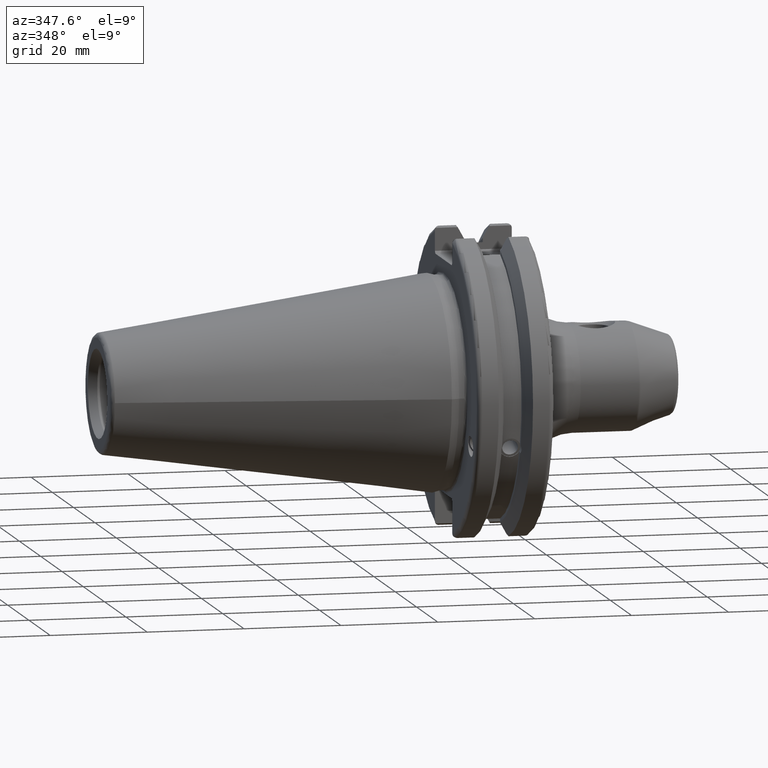
[diagram: clean part render]
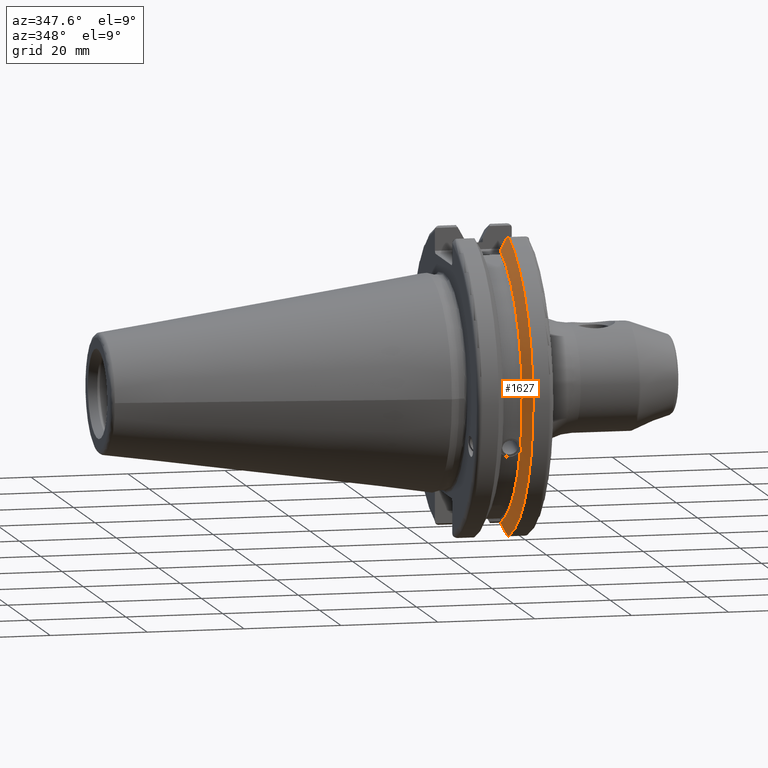
[diagram: same view with one face highlighted and labeled with its STEP entity id]
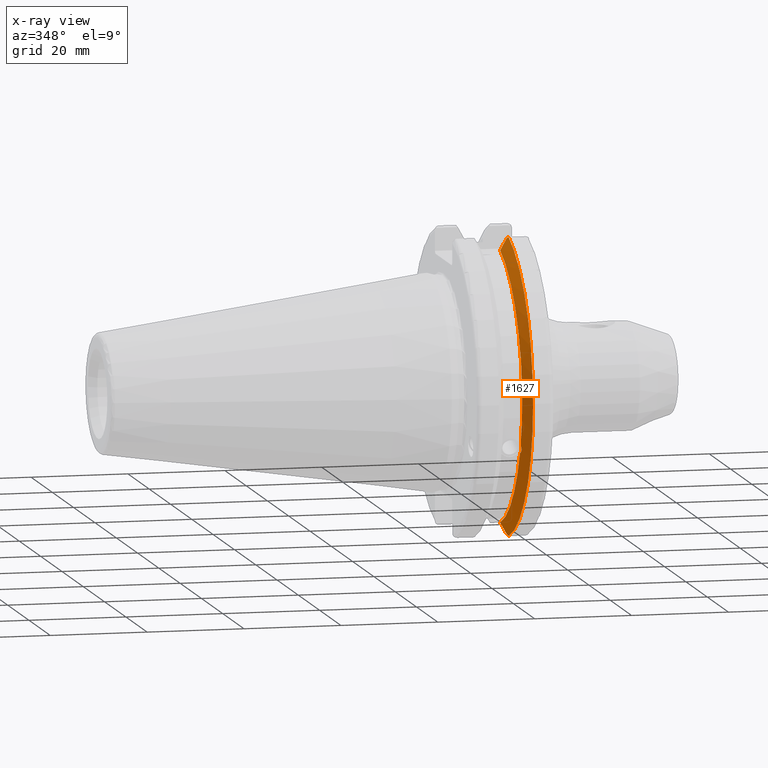
[diagram: x-ray of the same camera — body ghosted, the highlighted face saturated]
A machine part, auxiliary view. The second image highlights one B-rep face of the part: STEP entity #1627.
The next image is the same camera in x-ray: the body ghosted, the highlighted face saturated — about 0% of this face is hidden behind the body in this view.
In plain terms, the highlighted conical surface has half-angle 60 deg.
Its self-contained STEP definition (entity closure, byte-faithful):
#15=(
BOUNDED_CURVE()
B_SPLINE_CURVE(2,(#2885,#2886,#2887),.UNSPECIFIED.,.F.,.F.)
B_SPLINE_CURVE_WITH_KNOTS((3,3),(0.,0.276549142795512),.UNSPECIFIED.)
CURVE()
GEOMETRIC_REPRESENTATION_ITEM()
RATIONAL_B_SPLINE_CURVE((1.,1.00095203904184,1.00031614445102))
REPRESENTATION_ITEM('')
);
#16=(
BOUNDED_CURVE()
B_SPLINE_CURVE(2,(#2889,#2890,#2891),.UNSPECIFIED.,.F.,.F.)
B_SPLINE_CURVE_WITH_KNOTS((3,3),(0.,0.0639048713675663),.UNSPECIFIED.)
CURVE()
GEOMETRIC_REPRESENTATION_ITEM()
RATIONAL_B_SPLINE_CURVE((1.,1.00028444218286,1.00047644010578))
REPRESENTATION_ITEM('')
);
#17=(
BOUNDED_CURVE()
B_SPLINE_CURVE(2,(#2895,#2896,#2897),.UNSPECIFIED.,.F.,.F.)
B_SPLINE_CURVE_WITH_KNOTS((3,3),(0.329353533631206,0.393258405001023),
 .UNSPECIFIED.)
CURVE()
GEOMETRIC_REPRESENTATION_ITEM()
RATIONAL_B_SPLINE_CURVE((1.00047644010579,1.00028444218287,1.))
REPRESENTATION_ITEM('')
);
#18=(
BOUNDED_CURVE()
B_SPLINE_CURVE(2,(#2899,#2900,#2901),.UNSPECIFIED.,.F.,.F.)
B_SPLINE_CURVE_WITH_KNOTS((3,3),(0.0550586467393779,0.331607789535852),
 .UNSPECIFIED.)
CURVE()
GEOMETRIC_REPRESENTATION_ITEM()
RATIONAL_B_SPLINE_CURVE((1.00031614444922,1.00095203903643,1.))
REPRESENTATION_ITEM('')
);
#36=CONICAL_SURFACE('',#1781,30.3546886482472,1.0471975511966);
#127=CIRCLE('',#1782,28.9593772964944);
#128=CIRCLE('',#1783,31.75);
#129=CIRCLE('',#1784,28.9593772964944);
#210=FACE_OUTER_BOUND('',#310,.T.);
#310=EDGE_LOOP('',(#1223,#1224,#1225,#1226,#1227,#1228,#1229,#1230,#1231));
#597=B_SPLINE_CURVE_WITH_KNOTS('',3,(#2792,#2793,#2794,#2795,#2796,#2797,
#2798,#2799),.UNSPECIFIED.,.F.,.F.,(4,2,2,4),(0.451995700189024,0.464547828547662,
0.504528771685167,0.544509714822672),.UNSPECIFIED.);
#601=B_SPLINE_CURVE_WITH_KNOTS('',3,(#2854,#2855,#2856,#2857,#2858,#2859,
#2860,#2861),.UNSPECIFIED.,.F.,.F.,(4,2,2,4),(0.544509714822672,0.584490657960178,
0.624471601097683,0.637023729456322),.UNSPECIFIED.);
#699=VERTEX_POINT('',#2789);
#700=VERTEX_POINT('',#2791);
#707=VERTEX_POINT('',#2852);
#713=VERTEX_POINT('',#2882);
#714=VERTEX_POINT('',#2884);
#715=VERTEX_POINT('',#2888);
#716=VERTEX_POINT('',#2892);
#717=VERTEX_POINT('',#2894);
#718=VERTEX_POINT('',#2898);
#887=EDGE_CURVE('',#700,#699,#597,.T.);
#895=EDGE_CURVE('',#699,#707,#601,.T.);
#904=EDGE_CURVE('',#707,#713,#127,.T.);
#905=EDGE_CURVE('',#713,#714,#15,.T.);
#906=EDGE_CURVE('',#715,#714,#16,.T.);
#907=EDGE_CURVE('',#716,#715,#128,.T.);
#908=EDGE_CURVE('',#717,#716,#17,.T.);
#909=EDGE_CURVE('',#717,#718,#18,.T.);
#910=EDGE_CURVE('',#718,#700,#129,.T.);
#1223=ORIENTED_EDGE('',*,*,#887,.T.);
#1224=ORIENTED_EDGE('',*,*,#895,.T.);
#1225=ORIENTED_EDGE('',*,*,#904,.T.);
#1226=ORIENTED_EDGE('',*,*,#905,.T.);
#1227=ORIENTED_EDGE('',*,*,#906,.F.);
#1228=ORIENTED_EDGE('',*,*,#907,.F.);
#1229=ORIENTED_EDGE('',*,*,#908,.F.);
#1230=ORIENTED_EDGE('',*,*,#909,.T.);
#1231=ORIENTED_EDGE('',*,*,#910,.T.);
#1627=ADVANCED_FACE('',(#210),#36,.T.);
#1781=AXIS2_PLACEMENT_3D('',#2881,#2070,#2071);
#1782=AXIS2_PLACEMENT_3D('',#2883,#2072,#2073);
#1783=AXIS2_PLACEMENT_3D('',#2893,#2074,#2075);
#1784=AXIS2_PLACEMENT_3D('',#2902,#2076,#2077);
#2070=DIRECTION('center_axis',(1.,0.,0.));
#2071=DIRECTION('ref_axis',(0.,-1.,-1.22464679914735E-16));
#2072=DIRECTION('center_axis',(1.,0.,0.));
#2073=DIRECTION('ref_axis',(0.,0.,-1.));
#2074=DIRECTION('center_axis',(1.,0.,0.));
#2075=DIRECTION('ref_axis',(0.,0.,-1.));
#2076=DIRECTION('center_axis',(1.,0.,0.));
#2077=DIRECTION('ref_axis',(0.,0.,-1.));
#2789=CARTESIAN_POINT('',(13.2341,-27.51401829017,-10.0142836826777));
#2791=CARTESIAN_POINT('',(13.0491,-27.4956274489925,-9.09043478536245));
#2792=CARTESIAN_POINT('Ctrl Pts',(13.0491,-27.4956274489925,-9.09043478536245));
#2793=CARTESIAN_POINT('Ctrl Pts',(13.0632204071996,-27.5087667900418,-9.12860597076217));
#2794=CARTESIAN_POINT('Ctrl Pts',(13.0766929817857,-27.5206055003512,-9.16696618806877));
#2795=CARTESIAN_POINT('Ctrl Pts',(13.130081441159,-27.5642934663232,-9.32791534028656));
#2796=CARTESIAN_POINT('Ctrl Pts',(13.1682197084175,-27.5867382255984,-9.46717946402648));
#2797=CARTESIAN_POINT('Ctrl Pts',(13.2204106446058,-27.5847569104122,-9.74771639360671));
#2798=CARTESIAN_POINT('Ctrl Pts',(13.2341,-27.559599249844,-9.8890510252165));
#2799=CARTESIAN_POINT('Ctrl Pts',(13.2341,-27.51401829017,-10.0142836826777));
#2852=CARTESIAN_POINT('',(13.0491,-26.9060914640648,-10.7101715919071));
#2854=CARTESIAN_POINT('Ctrl Pts',(13.2341,-27.51401829017,-10.0142836826777));
#2855=CARTESIAN_POINT('Ctrl Pts',(13.2341,-27.4684373304961,-10.139516340139));
#2856=CARTESIAN_POINT('Ctrl Pts',(13.2204106446058,-27.3968610665578,-10.2639559818059));
#2857=CARTESIAN_POINT('Ctrl Pts',(13.1682197084175,-27.2180531796526,-10.4801333026531));
#2858=CARTESIAN_POINT('Ctrl Pts',(13.130081441159,-27.1113422433189,-10.5723885976054));
#2859=CARTESIAN_POINT('Ctrl Pts',(13.0766929817857,-26.9744191989197,-10.6676007180673));
#2860=CARTESIAN_POINT('Ctrl Pts',(13.0632204071996,-26.9406927482839,-10.6893765730703));
#2861=CARTESIAN_POINT('Ctrl Pts',(13.0491,-26.9060914640648,-10.7101715919071));
#2881=CARTESIAN_POINT('Origin',(13.8546833845378,0.,0.));
#2882=CARTESIAN_POINT('',(13.0491,-8.19,-27.7771386827498));
#2883=CARTESIAN_POINT('Origin',(13.0491,0.,0.));
#2884=CARTESIAN_POINT('',(14.3815146964874,-8.19,-30.1755016258903));
#2885=CARTESIAN_POINT('Ctrl Pts',(13.0491,-8.19,-27.7771386827498));
#2886=CARTESIAN_POINT('Ctrl Pts',(13.68773643849,-8.19,-28.9303689539956));
#2887=CARTESIAN_POINT('Ctrl Pts',(14.3815146964874,-8.19,-30.1755016258903));
#2888=CARTESIAN_POINT('',(14.6602667690756,-8.67204822802686,-30.5427254764662));
#2889=CARTESIAN_POINT('Ctrl Pts',(14.6602667690756,-8.67204822802687,-30.5427254764662));
#2890=CARTESIAN_POINT('Ctrl Pts',(14.5192085187837,-8.42917748262644,-30.357706789263));
#2891=CARTESIAN_POINT('Ctrl Pts',(14.3815146964874,-8.19,-30.1755016258903));
#2892=CARTESIAN_POINT('',(14.6602667690756,-8.67204822802685,30.5427254764662));
#2893=CARTESIAN_POINT('Origin',(14.6602667690756,0.,0.));
#2894=CARTESIAN_POINT('',(14.3815146964874,-8.19,30.1755016258903));
#2895=CARTESIAN_POINT('Ctrl Pts',(14.3815146964874,-8.19,30.1755016258903));
#2896=CARTESIAN_POINT('Ctrl Pts',(14.5192085187884,-8.42917748263465,30.3577067892692));
#2897=CARTESIAN_POINT('Ctrl Pts',(14.6602667690756,-8.67204822802686,30.5427254764662));
#2898=CARTESIAN_POINT('',(13.0491,-8.19,27.7771386827498));
#2899=CARTESIAN_POINT('Ctrl Pts',(14.3815146964874,-8.19,30.1755016258903));
#2900=CARTESIAN_POINT('Ctrl Pts',(13.687736438474,-8.19,28.9303689539668));
#2901=CARTESIAN_POINT('Ctrl Pts',(13.0491,-8.19,27.7771386827498));
#2902=CARTESIAN_POINT('Origin',(13.0491,0.,0.));